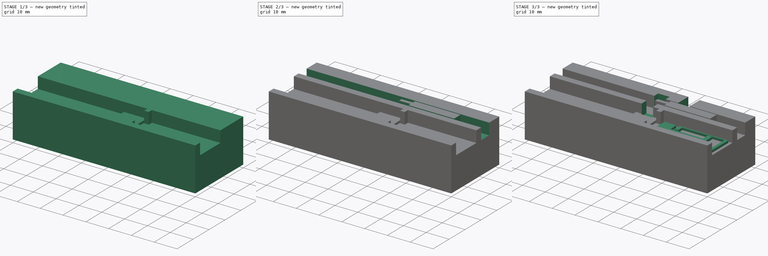
[diagram: build sequence overview — one tinted view per stage of 3, left to right]
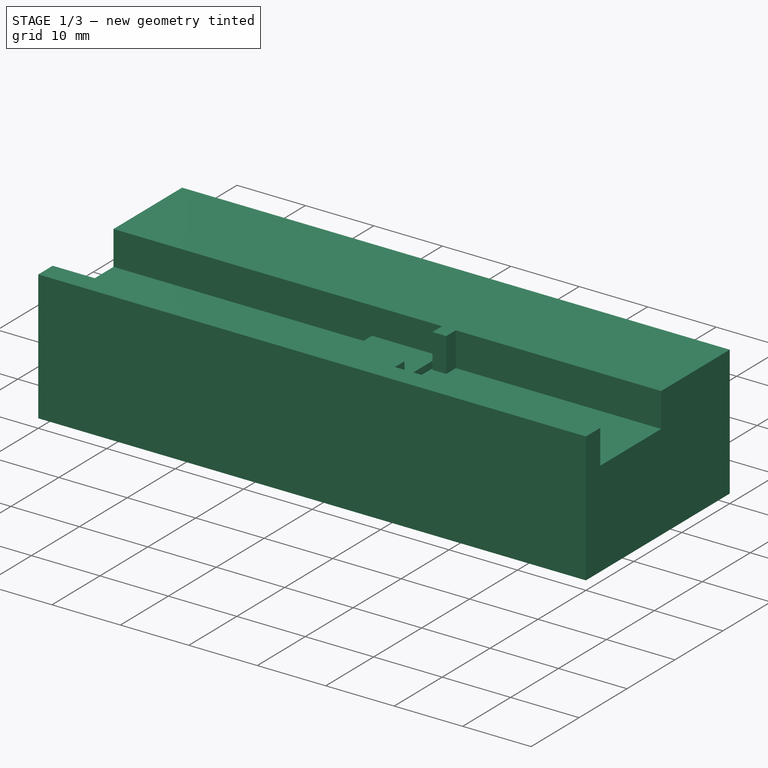
[diagram: stage 1 of 3 — iso view after this stage's code; geometry added in this stage tinted green]
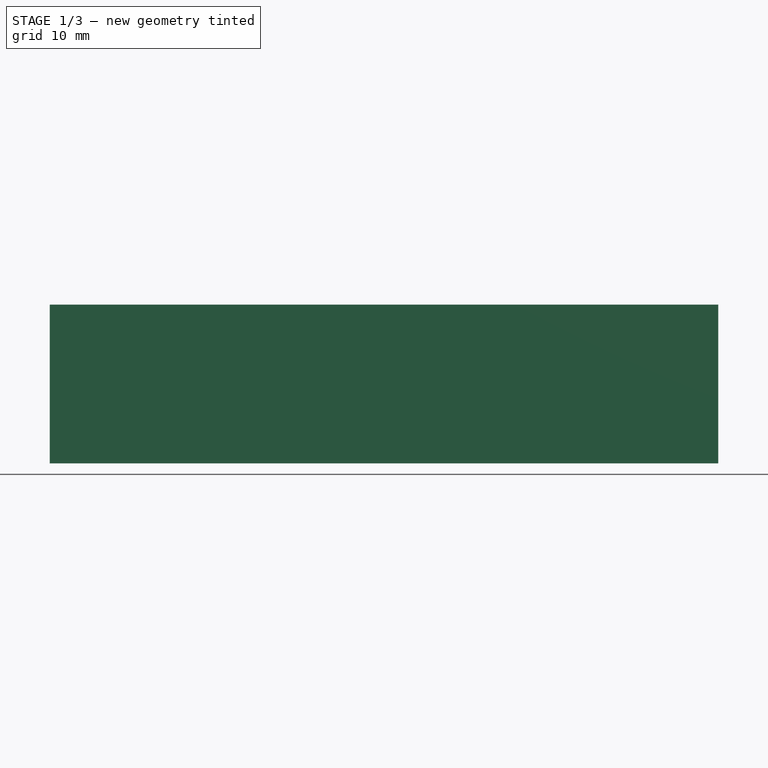
[diagram: stage 1 of 3 — front view after this stage's code; geometry added in this stage tinted green]
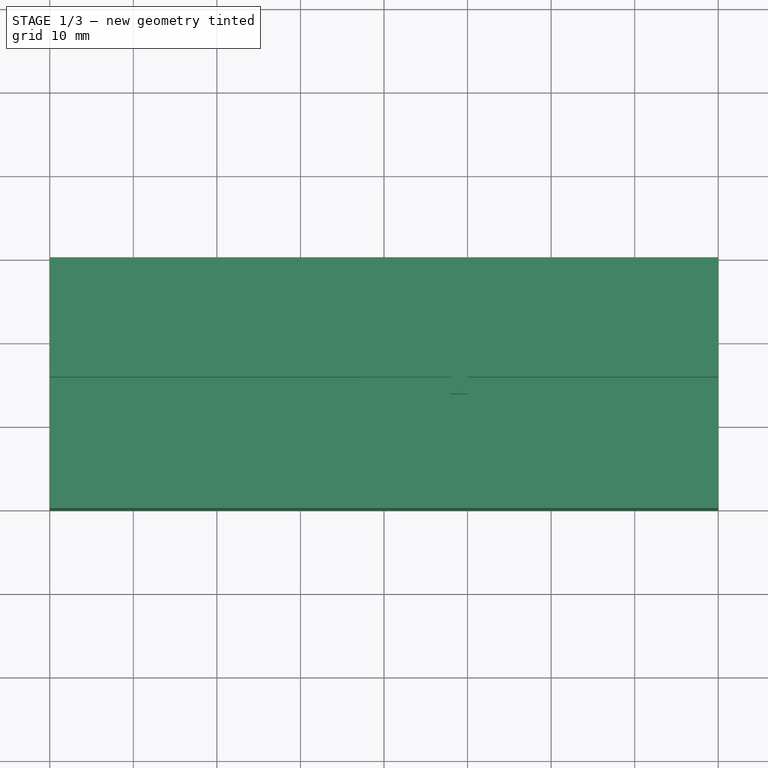
[diagram: stage 1 of 3 — top view after this stage's code; geometry added in this stage tinted green]
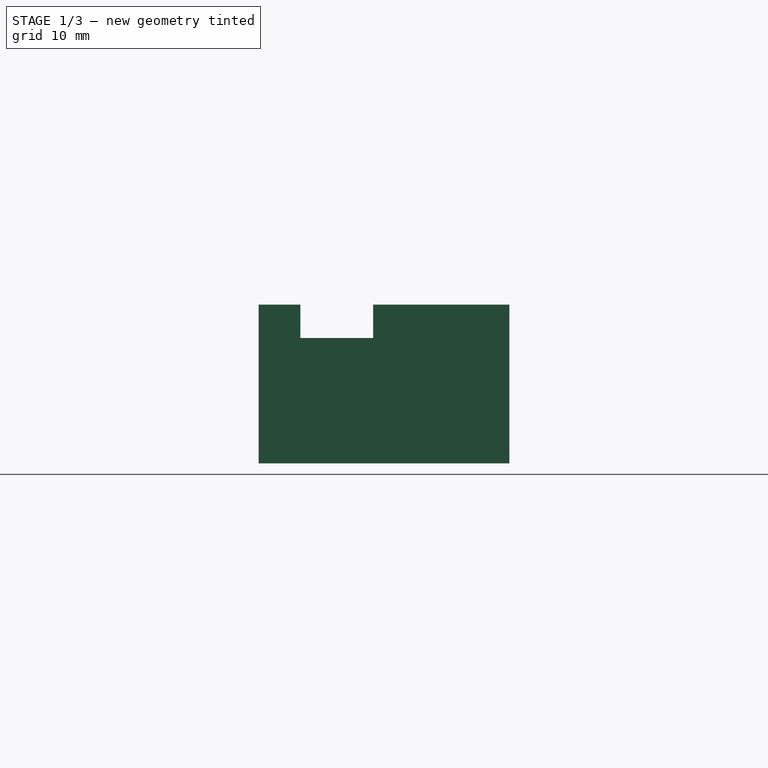
[diagram: stage 1 of 3 — right view after this stage's code; geometry added in this stage tinted green]
FCSTD DOCUMENT  (FreeCAD 0.19R)
Label: 1_stackedBolt
License: All rights reserved
LicenseURL: http://en.wikipedia.org/wiki/All_rights_reserved
objects: Sketcher::SketchObject×8, PartDesign::Pad×4, PartDesign::Pocket×4, PartDesign::Body×1
note: 25 computed .brp shape members not serialized (recipe doc carries the construction recipe); baked Part::Feature solids carry a one-line shape summary decoded from their .brp

FEATURE [Sketcher::SketchObject] Sketch
  FullyConstrained = true
  MapMode = 5
  Support = -> [XY_Plane]
  sketch-geometry (4):
    g0: LineSegment StartX=0 StartY=0 StartZ=0 EndX=80 EndY=0 EndZ=0
    g1: LineSegment StartX=80 StartY=0 StartZ=0 EndX=80 EndY=-30 EndZ=0
    g2: LineSegment StartX=80 StartY=-30 StartZ=0 EndX=0 EndY=-30 EndZ=0
    g3: LineSegment StartX=0 StartY=-30 StartZ=0 EndX=0 EndY=0 EndZ=0
  constraints (11):
    c: Coincident(g0,g1)
    c: Coincident(g1,g2)
    c: Coincident(g2,g3)
    c: Coincident(g3,g0)
    c: Horizontal(g0)
    c: Horizontal(g2)
    c: Vertical(g1)
    c: Vertical(g3)
    c: Distance(g1) = 30
    c: Distance(g0) = 80
    c: Coincident(g0,g-1)
FEATURE [PartDesign::Pad] Pad
  Direction = (1,1,1)
  Length = 19
  Length2 = 100
  Midplane = true
  Profile = -> Sketch
  Type = 0
FEATURE [Sketcher::SketchObject] Sketch001
  ExternalGeometry = -> [Pad]
  FullyConstrained = true
  MapMode = 5
  Placement = pos=(0,0,9.5) rot=(0,0,1;0rad)
  Support = -> [Pad]
  sketch-geometry (12):
    g0: LineSegment StartX=80 StartY=-14.3 StartZ=0 EndX=50 EndY=-14.3 EndZ=0
    g1: LineSegment StartX=50 StartY=-14.3 StartZ=0 EndX=50 EndY=-16.3 EndZ=0
    g2: LineSegment StartX=50 StartY=-16.3 StartZ=0 EndX=48 EndY=-16.3 EndZ=0
    g3: LineSegment StartX=48 StartY=-16.3 StartZ=0 EndX=48 EndY=-14.3 EndZ=0
    g4: LineSegment StartX=48 StartY=-14.3 StartZ=0 EndX=0 EndY=-14.3 EndZ=0
    g5: LineSegment StartX=0 StartY=-14.3 StartZ=0 EndX=0 EndY=-27 EndZ=0
    g6: LineSegment StartX=0 StartY=-27 StartZ=0 EndX=48 EndY=-27 EndZ=0
    g7: LineSegment StartX=48 StartY=-27 StartZ=0 EndX=48 EndY=-25 EndZ=0
    g8: LineSegment StartX=48 StartY=-25 StartZ=0 EndX=50 EndY=-25 EndZ=0
    g9: LineSegment StartX=50 StartY=-25 StartZ=0 EndX=50 EndY=-27 EndZ=0
    g10: LineSegment StartX=50 StartY=-27 StartZ=0 EndX=80 EndY=-27 EndZ=0
    g11: LineSegment StartX=80 StartY=-27 StartZ=0 EndX=80 EndY=-14.3 EndZ=0
  constraints (36):
    c: Horizontal(g0)
    c: Coincident(g0,g1)
    c: Coincident(g1,g2)
    c: Coincident(g2,g3)
    c: Coincident(g3,g4)
    c: Horizontal(g4)
    c: Coincident(g4,g5)
    c: Coincident(g5,g6)
    c: Horizontal(g6)
    c: Coincident(g6,g7)
    c: Coincident(g7,g8)
    c: Coincident(g8,g9)
    c: Coincident(g9,g10)
    c: Horizontal(g10)
    c: Coincident(g10,g11)
    c: Coincident(g11,g0)
    c: Vertical(g11)
    c: Distance(g11) = 12.7
    c: Distance(g5) = 12.7
    c: Vertical(g5)
    c: Distance(g2) = 2
    c: Equal(g8,g2)
    c: Horizontal(g8)
    c: Horizontal(g2)
    c: Equal(g7,g9)
    c: Equal(g9,g3)
    c: Equal(g3,g1)
    c: Vertical(g1)
    c: Vertical(g3)
    c: Vertical(g9)
    c: Equal(g10,g0)
    c: Distance(g9) = 2
    c: Distance(g-3,g10) = 3
    c: PointOnObject(g4,g-2)
    c: PointOnObject(g0,g-4)
    c: Distance(g10) = 30
FEATURE [PartDesign::Pocket] Pocket
  BaseFeature = -> Pad
  Length = 5
  Length2 = 100
  Profile = -> Sketch001
  Type = 0
FEATURE [Sketcher::SketchObject] Sketch002
  ExternalGeometry = -> [Pocket]
  FullyConstrained = false
  MapMode = 5
  Placement = pos=(0,0,4.5) rot=(0,0,1;0rad)
  Support = -> [Pocket]
  sketch-geometry (4):
    g0: LineSegment StartX=37.7519 StartY=-14.2824 StartZ=0 EndX=47.7519 EndY=-14.2824 EndZ=0
    g1: LineSegment StartX=47.7519 StartY=-14.2824 StartZ=0 EndX=47.7519 EndY=-26.9824 EndZ=0
    g2: LineSegment StartX=47.7519 StartY=-26.9824 StartZ=0 EndX=37.7519 EndY=-26.9824 EndZ=0
    g3: LineSegment StartX=37.7519 StartY=-26.9824 StartZ=0 EndX=37.7519 EndY=-14.2824 EndZ=0
  constraints (10):
    c: Coincident(g0,g1)
    c: Coincident(g1,g2)
    c: Coincident(g2,g3)
    c: Coincident(g3,g0)
    c: Horizontal(g0)
    c: Horizontal(g2)
    c: Vertical(g1)
    c: Vertical(g3)
    c: Distance(g0) = 10
    c: Distance(g1) = 12.7
FEATURE [PartDesign::Pad] Pad001
  BaseFeature = -> Pocket
  Direction = (1,1,1)
  Length = 1
  Length2 = 100
  Profile = -> Sketch002
  Type = 0
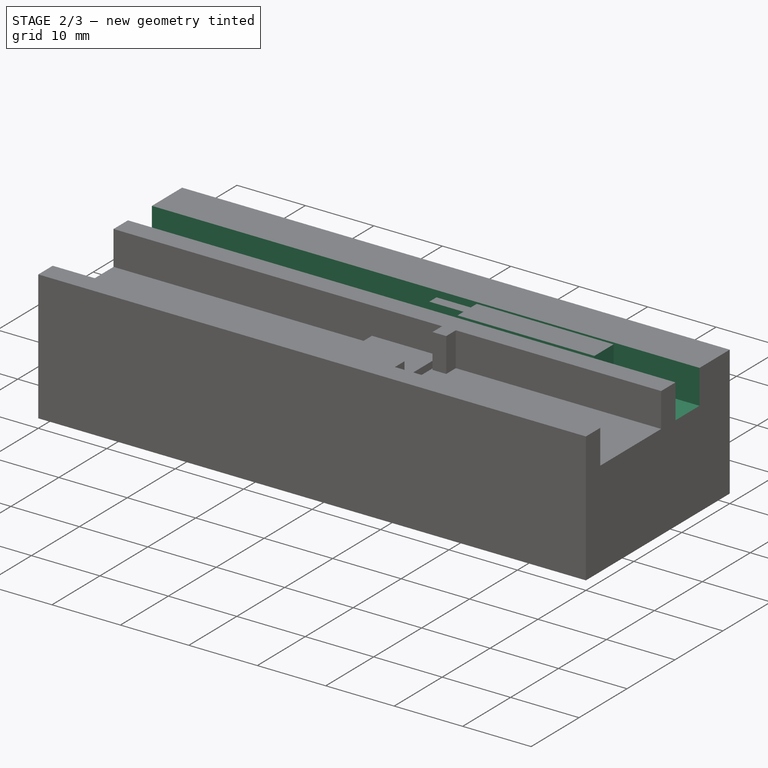
[diagram: stage 2 of 3 — iso view after this stage's code; geometry added in this stage tinted green]
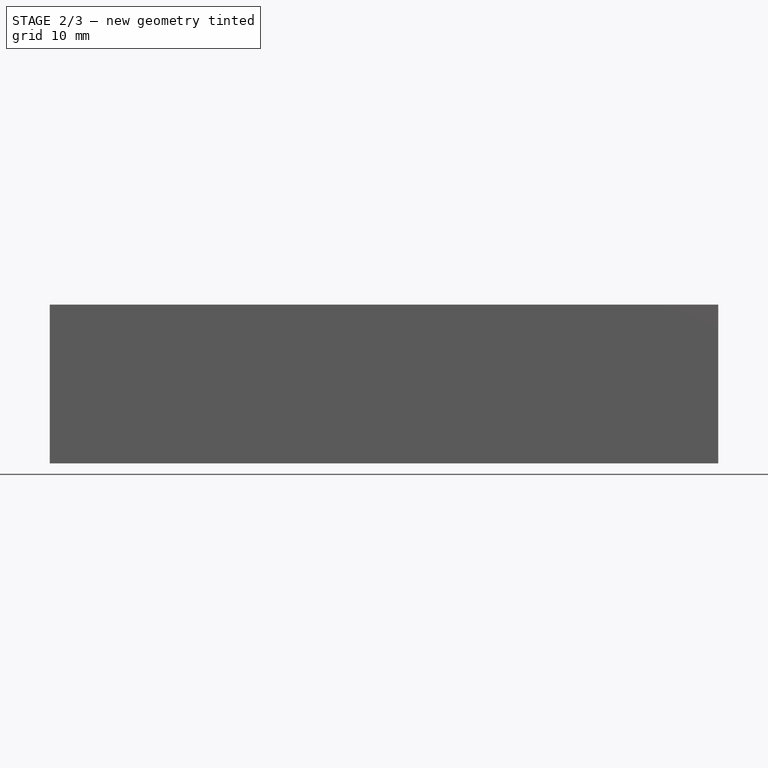
[diagram: stage 2 of 3 — front view after this stage's code; geometry added in this stage tinted green]
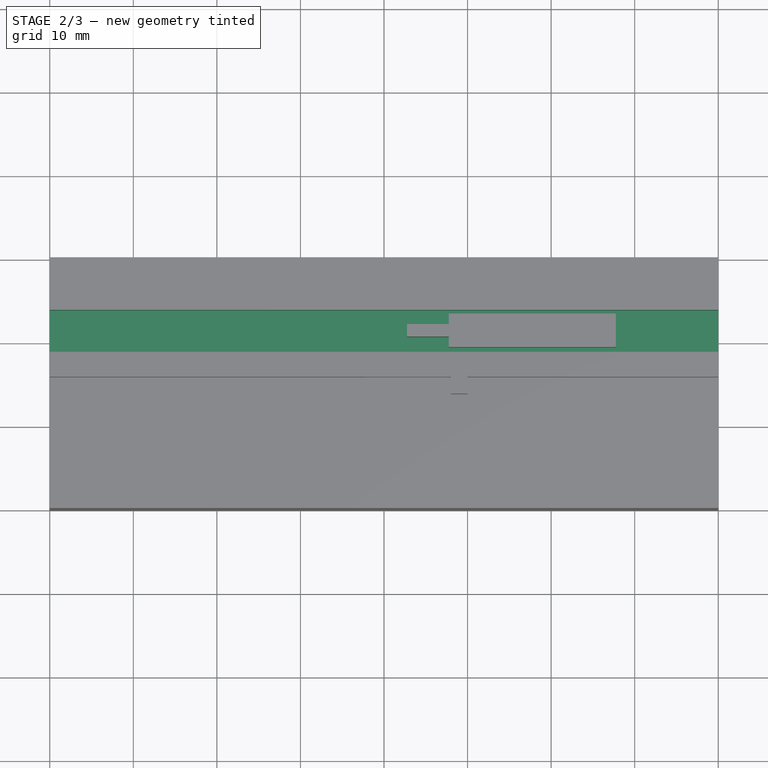
[diagram: stage 2 of 3 — top view after this stage's code; geometry added in this stage tinted green]
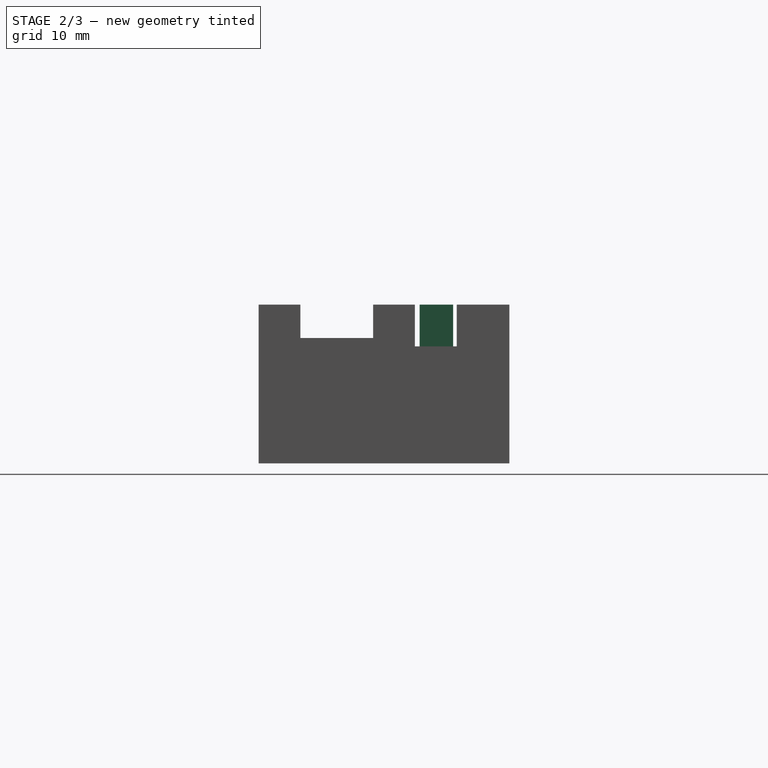
[diagram: stage 2 of 3 — right view after this stage's code; geometry added in this stage tinted green]
FEATURE [Sketcher::SketchObject] Sketch003
  ExternalGeometry = -> [Pad001]
  FullyConstrained = false
  MapMode = 5
  Placement = pos=(0,0,9.5) rot=(0,0,1;0rad)
  Support = -> [Pad001]
  sketch-geometry (4):
    g0: LineSegment StartX=-3.23808 StartY=-6.3 StartZ=0 EndX=86.4033 EndY=-6.3 EndZ=0
    g1: LineSegment StartX=86.4033 StartY=-6.3 StartZ=0 EndX=86.4033 EndY=-11.3 EndZ=0
    g2: LineSegment StartX=86.4033 StartY=-11.3 StartZ=0 EndX=-3.23808 EndY=-11.3 EndZ=0
    g3: LineSegment StartX=-3.23808 StartY=-11.3 StartZ=0 EndX=-3.23808 EndY=-6.3 EndZ=0
  constraints (10):
    c: Coincident(g0,g1)
    c: Coincident(g1,g2)
    c: Coincident(g2,g3)
    c: Coincident(g3,g0)
    c: Horizontal(g0)
    c: Horizontal(g2)
    c: Vertical(g1)
    c: Vertical(g3)
    c: Distance(g1) = 5
    c: Distance(g-3,g2) = 3
FEATURE [PartDesign::Pocket] Pocket001
  BaseFeature = -> Pad001
  Length = 5
  Length2 = 100
  Profile = -> Sketch003
  Type = 0
FEATURE [Sketcher::SketchObject] Sketch004
  ExternalGeometry = -> [Pocket001]
  FullyConstrained = true
  MapMode = 5
  Placement = pos=(0,0,4.5) rot=(0,0,1;0rad)
  Support = -> [Pocket001]
  sketch-geometry (8):
    g0: LineSegment StartX=67.7519 StartY=-10.73 StartZ=0 EndX=47.7519 EndY=-10.73 EndZ=0
    g1: LineSegment StartX=47.7519 StartY=-10.73 StartZ=0 EndX=47.7519 EndY=-9.48 EndZ=0
    g2: LineSegment StartX=47.7519 StartY=-9.48 StartZ=0 EndX=42.7519 EndY=-9.48 EndZ=0
    g3: LineSegment StartX=42.7519 StartY=-9.48 StartZ=0 EndX=42.7519 EndY=-7.98 EndZ=0
    g4: LineSegment StartX=42.7519 StartY=-7.98 StartZ=0 EndX=47.7519 EndY=-7.98 EndZ=0
    g5: LineSegment StartX=47.7519 StartY=-7.98 StartZ=0 EndX=47.7519 EndY=-6.73 EndZ=0
    g6: LineSegment StartX=47.7519 StartY=-6.73 StartZ=0 EndX=67.7519 EndY=-6.73 EndZ=0
    g7: LineSegment StartX=67.7519 StartY=-6.73 StartZ=0 EndX=67.7519 EndY=-10.73 EndZ=0
  constraints (24):
    c: Horizontal(g0)
    c: Coincident(g0,g1)
    c: Coincident(g1,g2)
    c: Horizontal(g2)
    c: Coincident(g2,g3)
    c: Coincident(g3,g4)
    c: Coincident(g4,g5)
    c: Coincident(g5,g6)
    c: Horizontal(g6)
    c: Coincident(g6,g7)
    c: Coincident(g7,g0)
    c: Vertical(g7)
    c: Distance(g7) = 4
    c: Distance(g3) = 1.5
    c: Vertical(g3)
    c: Horizontal(g4)
    c: Vertical(g1)
    c: Vertical(g5)
    c: Equal(g6,g0)
    c: Equal(g1,g5)
    c: DistanceX(g-3,g2) = 5
    c: Distance(g4) = 5
    c: Distance(g6) = 20
    c: DistanceY(g6) = -6.73
FEATURE [PartDesign::Pad] Pad002
  BaseFeature = -> Pocket001
  Direction = (1,1,1)
  Length = 5
  Length2 = 100
  Profile = -> Sketch004
  Type = 0
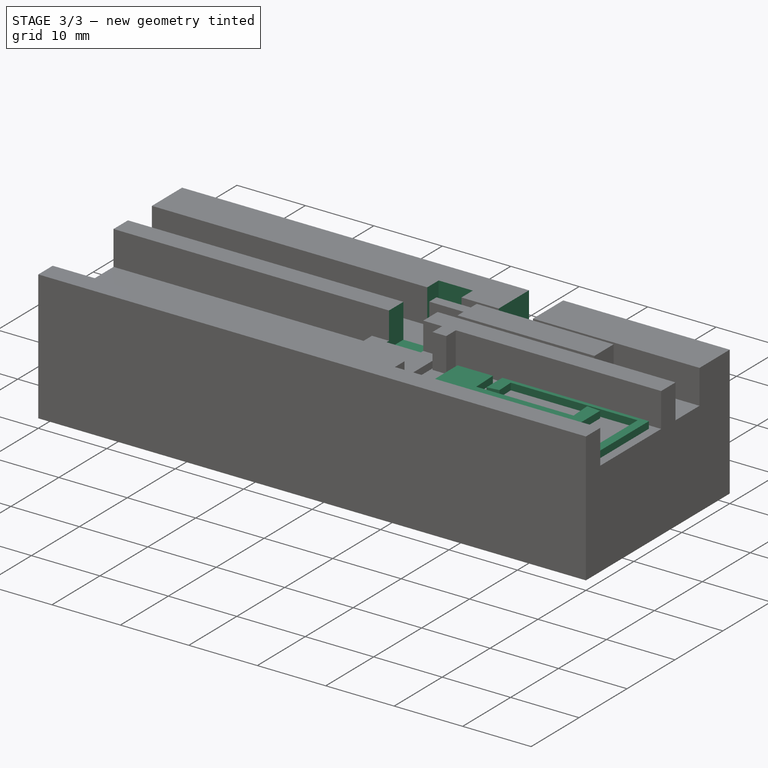
[diagram: stage 3 of 3 — iso view after this stage's code; geometry added in this stage tinted green]
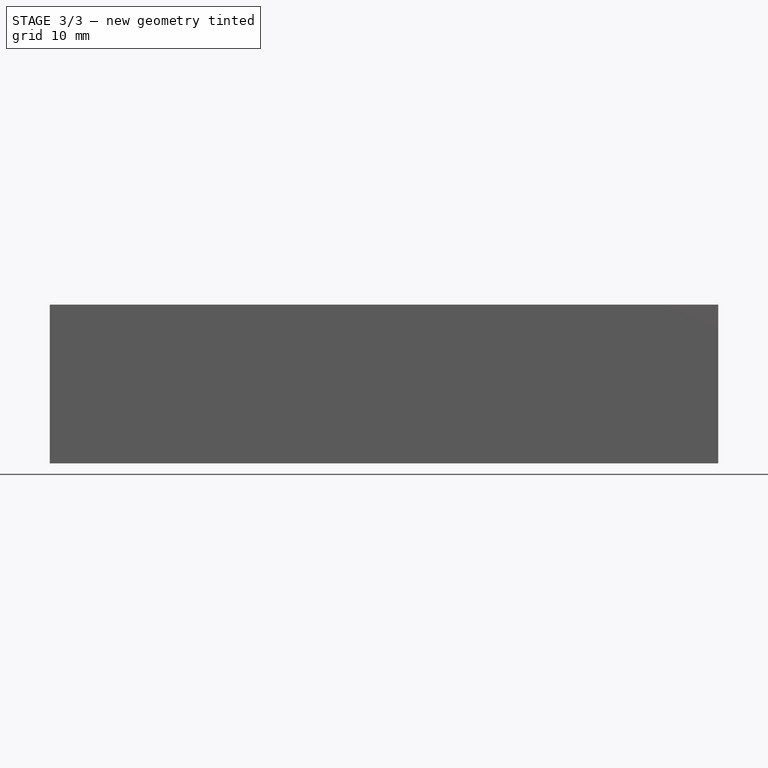
[diagram: stage 3 of 3 — front view after this stage's code; geometry added in this stage tinted green]
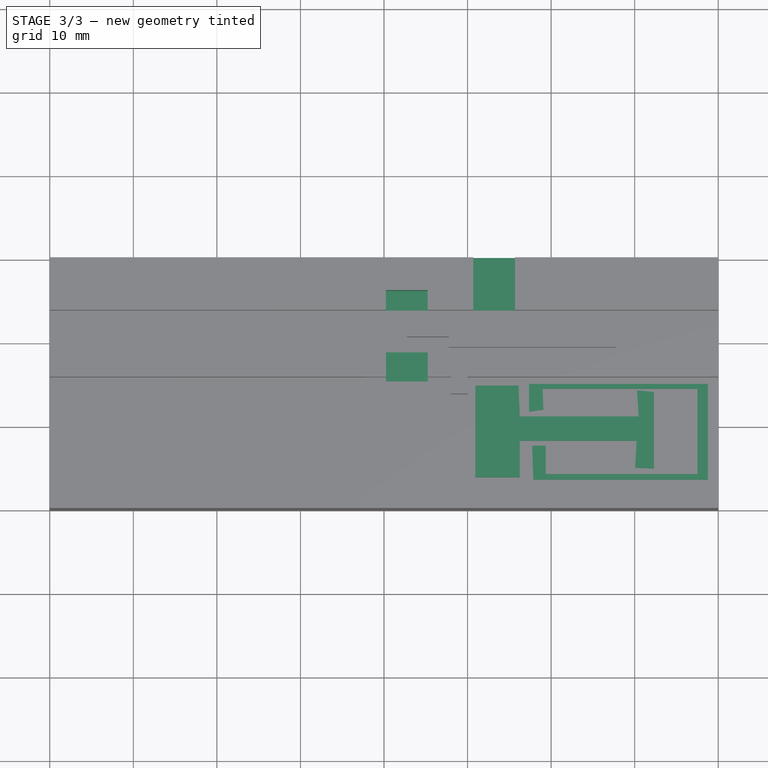
[diagram: stage 3 of 3 — top view after this stage's code; geometry added in this stage tinted green]
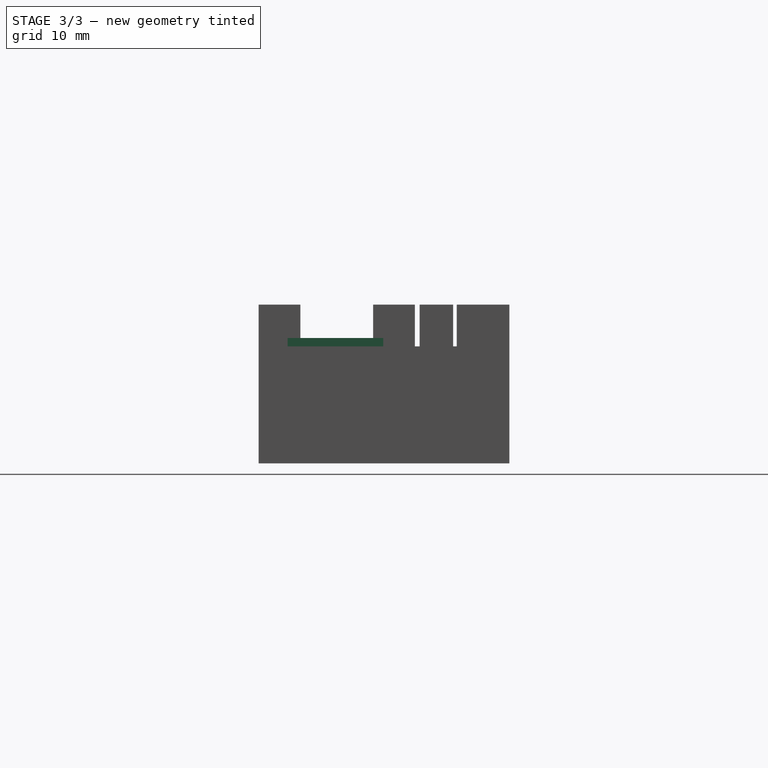
[diagram: stage 3 of 3 — right view after this stage's code; geometry added in this stage tinted green]
FEATURE [Sketcher::SketchObject] Sketch005
  ExternalGeometry = -> [Pad002]
  FullyConstrained = false
  MapMode = 5
  Placement = pos=(0,0,9.5) rot=(0,0,1;0rad)
  Support = -> [Pad002]
  sketch-geometry (4):
    g0: LineSegment StartX=50.6739 StartY=5.62447 StartZ=0 EndX=55.6739 EndY=5.62447 EndZ=0
    g1: LineSegment StartX=55.6739 StartY=5.62447 StartZ=0 EndX=55.6739 EndY=-6.55788 EndZ=0
    g2: LineSegment StartX=55.6739 StartY=-6.55788 StartZ=0 EndX=50.6739 EndY=-6.55788 EndZ=0
    g3: LineSegment StartX=50.6739 StartY=-6.55788 StartZ=0 EndX=50.6739 EndY=5.62447 EndZ=0
  constraints (10):
    c: Coincident(g0,g1)
    c: Coincident(g1,g2)
    c: Coincident(g2,g3)
    c: Coincident(g3,g0)
    c: Horizontal(g0)
    c: Horizontal(g2)
    c: Vertical(g1)
    c: Vertical(g3)
    c: Distance(g0) = 5
    c: Distance(g-4,g1) = 13
FEATURE [PartDesign::Pocket] Pocket002
  BaseFeature = -> Pad002
  Length = 5
  Length2 = 100
  Profile = -> Sketch005
  Type = 0
FEATURE [Sketcher::SketchObject] Sketch006
  FullyConstrained = false
  MapMode = 5
  Placement = pos=(0,0,4.5) rot=(0,0,1;0rad)
  Support = -> [Pocket002]
  sketch-geometry (24):
    g0: LineSegment StartX=50.9311 StartY=-15.2786 StartZ=0 EndX=50.9311 EndY=-26.2483 EndZ=0
    g1: LineSegment StartX=50.9311 StartY=-26.2483 StartZ=0 EndX=56.2484 EndY=-26.2483 EndZ=0
    g2: LineSegment StartX=56.1047 StartY=-15.2786 StartZ=0 EndX=50.9311 EndY=-15.2786 EndZ=0
    g3: LineSegment StartX=56.1047 StartY=-15.2786 StartZ=0 EndX=56.2484 EndY=-18.9671 EndZ=0
    g4: LineSegment StartX=56.2484 StartY=-18.9671 StartZ=0 EndX=70.4755 EndY=-18.9671 EndZ=0
    g5: LineSegment StartX=70.4755 StartY=-18.9671 StartZ=0 EndX=70.2839 EndY=-15.8534 EndZ=0
    g6: LineSegment StartX=70.2839 StartY=-15.8534 StartZ=0 EndX=72.2958 EndY=-16.045 EndZ=0
    g7: LineSegment StartX=72.2958 StartY=-16.045 StartZ=0 EndX=72.2958 EndY=-25.1945 EndZ=0
    g8: LineSegment StartX=72.2958 StartY=-25.1945 StartZ=0 EndX=70.0444 EndY=-25.0987 EndZ=0
    g9: LineSegment StartX=70.0444 StartY=-25.0987 StartZ=0 EndX=70.236 EndY=-21.8892 EndZ=0
    g10: LineSegment StartX=70.236 StartY=-21.8892 StartZ=0 EndX=56.2484 EndY=-21.8892 EndZ=0
    g11: LineSegment StartX=56.2484 StartY=-21.8892 StartZ=0 EndX=56.2484 EndY=-26.2483 EndZ=0
    g12: LineSegment StartX=59.0746 StartY=-18.1527 StartZ=0 EndX=58.9788 EndY=-15.6618 EndZ=0
    g13: LineSegment StartX=58.9788 StartY=-15.6618 StartZ=0 EndX=77.5172 EndY=-15.6618 EndZ=0
    g14: LineSegment StartX=77.5172 StartY=-15.6618 StartZ=0 EndX=77.5172 EndY=-25.8651 EndZ=0
    g15: LineSegment StartX=77.5172 StartY=-25.8651 StartZ=0 EndX=59.362 EndY=-25.8651 EndZ=0
    g16: LineSegment StartX=59.362 StartY=-25.8651 StartZ=0 EndX=59.362 EndY=-22.464 EndZ=0
    g17: LineSegment StartX=59.362 StartY=-22.464 StartZ=0 EndX=57.7334 EndY=-22.464 EndZ=0
    g18: LineSegment StartX=57.7334 StartY=-22.464 StartZ=0 EndX=57.8771 EndY=-26.5357 EndZ=0
    g19: LineSegment StartX=57.8771 StartY=-26.5357 StartZ=0 EndX=78.7627 EndY=-26.5357 EndZ=0
    g20: LineSegment StartX=78.7627 StartY=-26.5357 StartZ=0 EndX=78.7627 EndY=-15.087 EndZ=0
    g21: LineSegment StartX=78.7627 StartY=-15.087 StartZ=0 EndX=57.3501 EndY=-15.087 EndZ=0
    g22: LineSegment StartX=57.3501 StartY=-15.087 StartZ=0 EndX=57.3501 EndY=-18.3923 EndZ=0
    g23: LineSegment StartX=57.3501 StartY=-18.3923 StartZ=0 EndX=59.0746 EndY=-18.1527 EndZ=0
  constraints (40):
    c: Vertical(g0)
    c: Coincident(g0,g1)
    c: Horizontal(g1)
    c: Coincident(g2,g0)
    c: Horizontal(g2)
    c: Coincident(g2,g3)
    c: Coincident(g3,g4)
    c: Horizontal(g4)
    c: Coincident(g4,g5)
    c: Coincident(g5,g6)
    c: Coincident(g6,g7)
    c: Vertical(g7)
    c: Coincident(g7,g8)
    c: Coincident(g8,g9)
    c: Coincident(g9,g10)
    c: Horizontal(g10)
    c: Coincident(g10,g11)
    c: Coincident(g11,g1)
    c: Vertical(g11)
    c: Coincident(g12,g13)
    c: Horizontal(g13)
    c: Coincident(g13,g14)
    c: Vertical(g14)
    c: Coincident(g14,g15)
    c: Horizontal(g15)
    c: Coincident(g15,g16)
    c: Vertical(g16)
    c: Coincident(g16,g17)
    c: Horizontal(g17)
    c: Coincident(g17,g18)
    c: Coincident(g18,g19)
    c: Horizontal(g19)
    c: Coincident(g19,g20)
    c: Vertical(g20)
    c: Coincident(g20,g21)
    c: Horizontal(g21)
    c: Coincident(g21,g22)
    c: Vertical(g22)
    c: Coincident(g22,g23)
    c: Coincident(g12,g23)
FEATURE [PartDesign::Pad] Pad003
  BaseFeature = -> Pocket002
  Direction = (1,1,1)
  Length = 1
  Length2 = 100
  Profile = -> Sketch006
  Type = 0
FEATURE [Sketcher::SketchObject] Sketch007
  FullyConstrained = false
  MapMode = 5
  Placement = pos=(0,0,9.5) rot=(0,0,1;0rad)
  Support = -> [Pad003]
  sketch-geometry (8):
    g0: LineSegment StartX=40.2398 StartY=-10.7278 StartZ=0 EndX=45.2398 EndY=-10.7278 EndZ=0
    g1: LineSegment StartX=45.2398 StartY=-10.7278 StartZ=0 EndX=45.2398 EndY=-14.7995 EndZ=0
    g2: LineSegment StartX=45.2398 StartY=-14.7995 StartZ=0 EndX=40.2398 EndY=-14.7995 EndZ=0
    g3: LineSegment StartX=40.2398 StartY=-14.7995 StartZ=0 EndX=40.2398 EndY=-10.7278 EndZ=0
    g4: LineSegment StartX=40.2261 StartY=-3.92554 StartZ=0 EndX=45.2261 EndY=-3.92554 EndZ=0
    g5: LineSegment StartX=45.2261 StartY=-3.92554 StartZ=0 EndX=45.2261 EndY=-6.75181 EndZ=0
    g6: LineSegment StartX=45.2261 StartY=-6.75181 StartZ=0 EndX=40.2261 EndY=-6.75181 EndZ=0
    g7: LineSegment StartX=40.2261 StartY=-6.75181 StartZ=0 EndX=40.2261 EndY=-3.92554 EndZ=0
  constraints (18):
    c: Coincident(g0,g1)
    c: Coincident(g1,g2)
    c: Coincident(g2,g3)
    c: Coincident(g3,g0)
    c: Horizontal(g0)
    c: Horizontal(g2)
    c: Vertical(g1)
    c: Vertical(g3)
    c: Distance(g0) = 5
    c: Coincident(g4,g5)
    c: Coincident(g5,g6)
    c: Coincident(g6,g7)
    c: Coincident(g7,g4)
    c: Horizontal(g4)
    c: Horizontal(g6)
    c: Vertical(g5)
    c: Vertical(g7)
    c: Distance(g6) = 5
FEATURE [PartDesign::Pocket] Pocket003
  BaseFeature = -> Pad003
  Length = 5
  Length2 = 100
  Profile = -> Sketch007
  Type = 0
FEATURE [PartDesign::Body] Body
  Group = -> [Sketch,Pad,Sketch001,Pocket,Sketch002,Pad001,Sketch003,Pocket001,Sketch004,Pad002,Sketch005,Pocket002,Sketch006,Pad003,Sketch007,Pocket003]
  Origin = -> Origin
  Tip = -> Pocket003
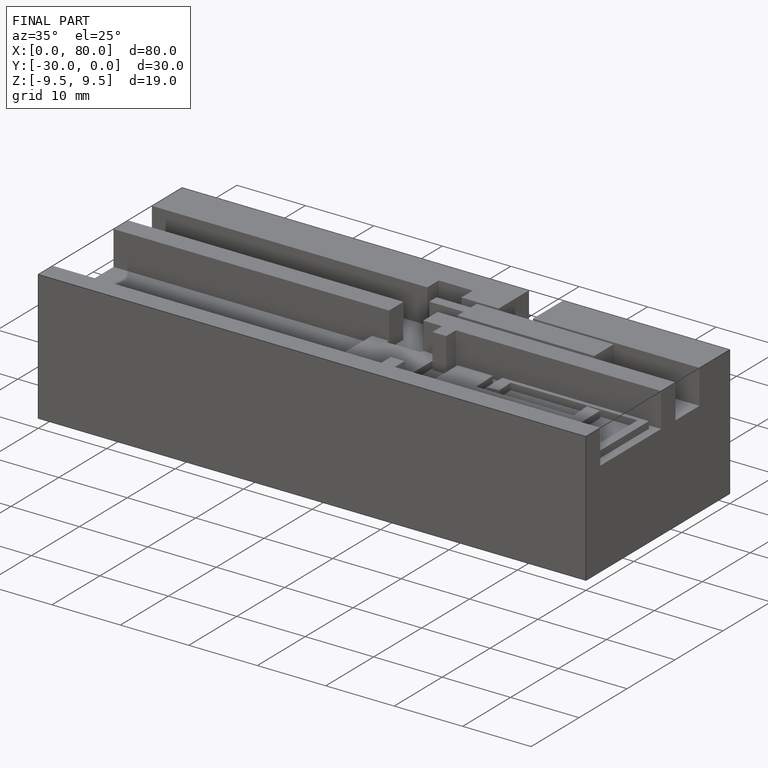
[diagram: finished part — iso view with bounding-box wireframe]
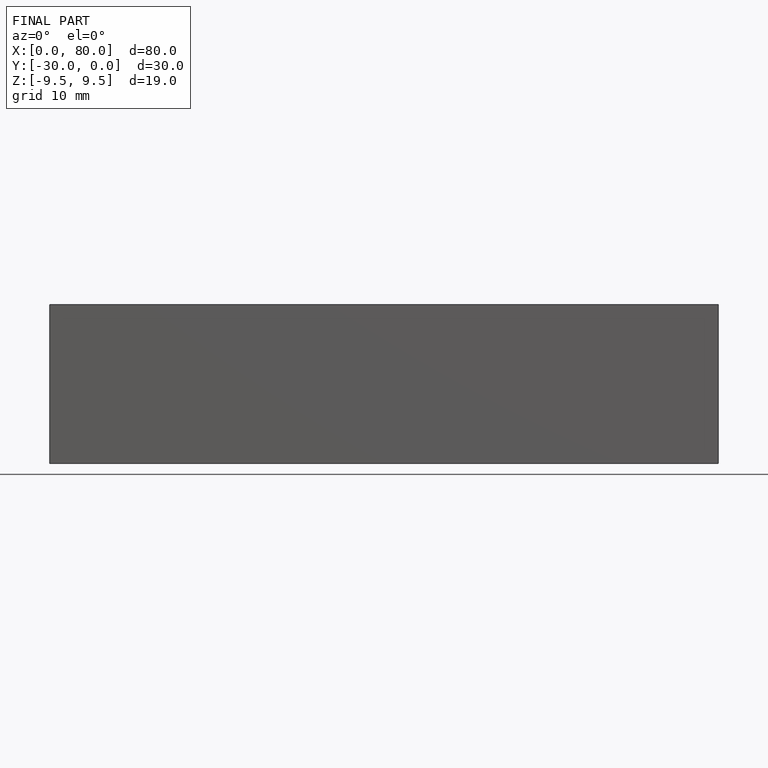
[diagram: finished part — front view with bounding-box wireframe]
